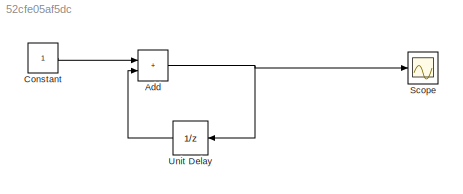
MODEL slx_52cfe05af5dc
KIND model
CONFIG AbsTol = auto
CONFIG EnableMultiTasking = off
CONFIG FixedStep = auto
CONFIG MaxStep = auto
CONFIG MinStep = auto
CONFIG RelTol = 1e-3
CONFIG SampleTimeConstraint = Unconstrained
CONFIG SolverName = VariableStepAuto
CONFIG StartTime = 0.0
CONFIG StopTime = 1
BLOCK [Sum] Add
  IconShape = rectangular
  Ports = [2, 1]
BLOCK [Constant] Constant
BLOCK [Scope] Scope
  Floating = off
  NumInputPorts = 1
  Ports = [1]
  ScopeSpecificationString = Simulink.scopes.TimeScopeBlockCfg('CurrentConfiguration', extmgr.ConfigurationSet(extmgr.Configuration('Core','General UI',true),extmgr.Configuration('Core','Source UI',true),extmgr.Configuration('Sources','WiredSimulink',true),extmgr.Configuration('Visuals','Time Domain',true,'SerializedDisplays',{struct('MinYLimReal','-5.25','MaxYLimReal','57.25','YLabelReal','','MinYLimMag','0.00000','MaxYLimMa...<+1309ch>
BLOCK [UnitDelay] Unit Delay
  HasFrameUpgradeWarning = on
  SampleTime = -1
NET Add:1 -> Scope:1, Unit Delay:1
LINE Constant:1 -> Add:1
LINE Unit Delay:1 -> Add:2
note: NET lines group one-source signal fan-out (src -> all destinations, sorted); 1:1 wires keep LINE
